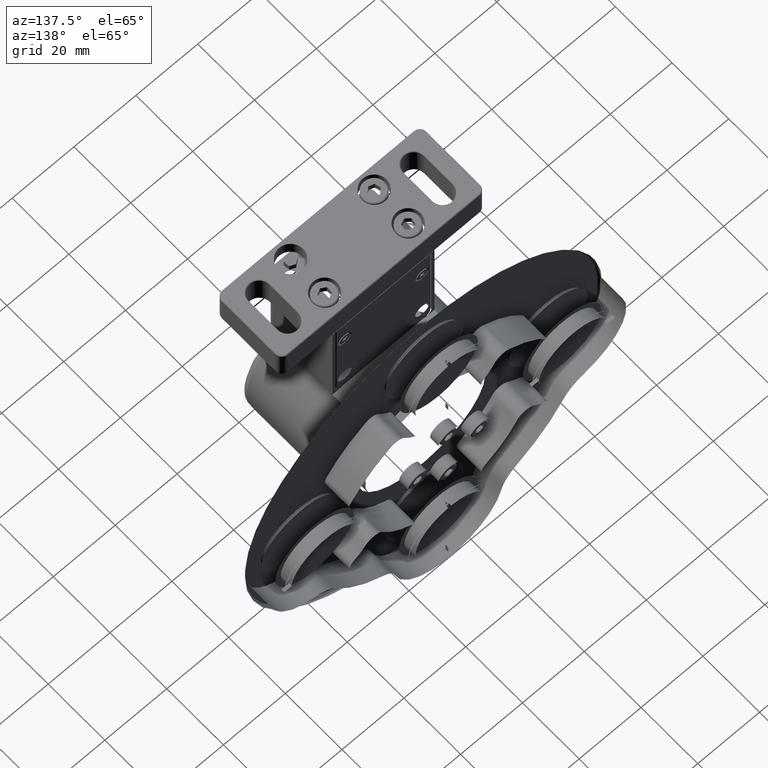
[diagram: clean part render]
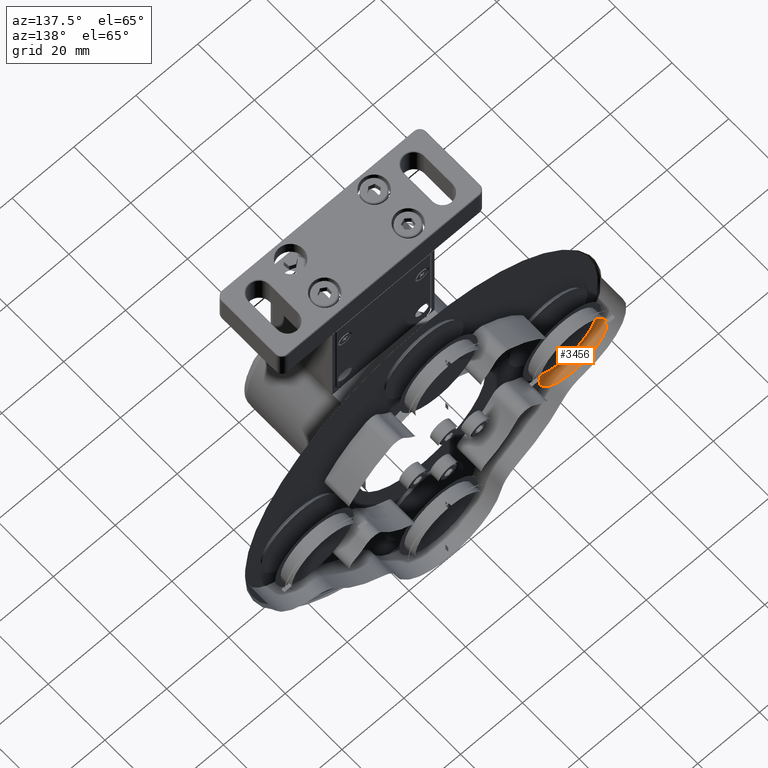
[diagram: same view with one face highlighted and labeled with its STEP entity id]
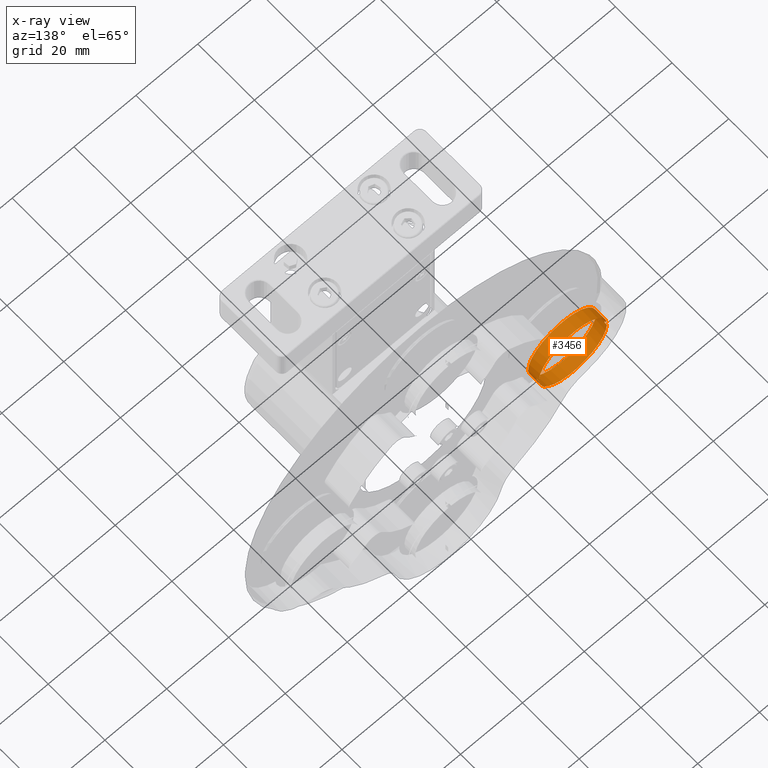
[diagram: x-ray of the same camera — body ghosted, the highlighted face saturated]
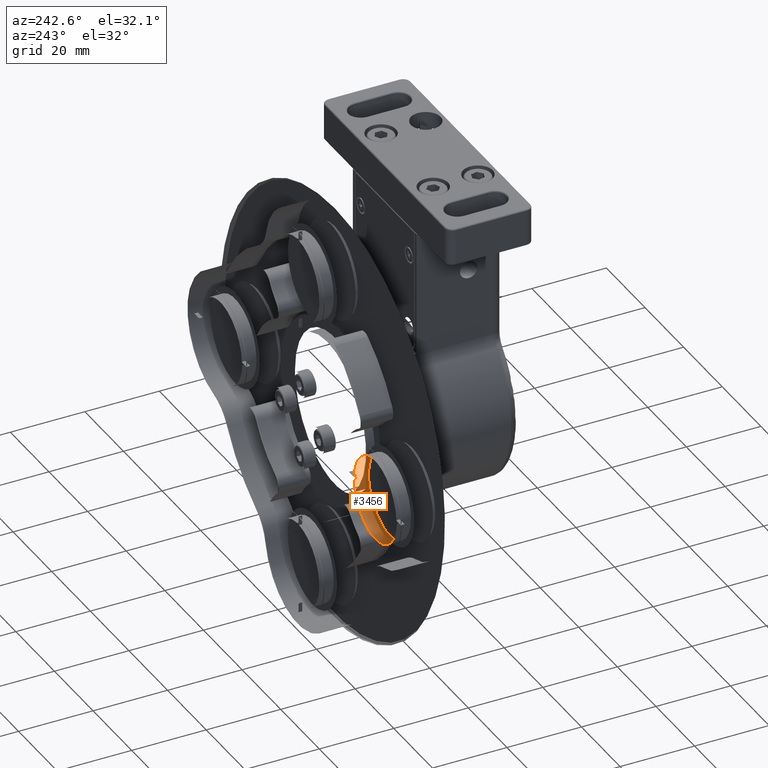
[diagram: same view with one face highlighted and labeled with its STEP entity id]
A machine part, auxiliary view. The second image highlights one B-rep face of the part: STEP entity #3456.
The next image is the same camera in x-ray: the body ghosted, the highlighted face saturated — about 0% of this face is hidden behind the body in this view.
A second angle (auxiliary view) of the same face is appended — the face is thin or edge-on in the first view.
In plain terms, the highlighted cylindrical surface (bore or boss wall) has radius 11 mm, axis along (0, -1, 0).
Its self-contained STEP definition (entity closure, byte-faithful):
#15 = ORIENTED_EDGE ( 'NONE', *, *, #11089, .T. ) ;
#172 = CIRCLE ( 'NONE', #12394, 10.99999999999999645 ) ;
#661 = DIRECTION ( 'NONE',  ( 1.000000000000000000, 0.000000000000000000, 0.000000000000000000 ) ) ;
#746 = DIRECTION ( 'NONE',  ( -3.488278094132890012E-29, 1.000000000000000000, -2.138707506833294133E-68 ) ) ;
#961 = DIRECTION ( 'NONE',  ( -2.274263914302540920E-28, 1.000000000000000000, 1.084202172485505420E-16 ) ) ;
#1329 = CIRCLE ( 'NONE', #15526, 10.99999999999999645 ) ;
#1534 = VERTEX_POINT ( 'NONE', #4554 ) ;
#1742 = CARTESIAN_POINT ( 'NONE',  ( -72.19565927728528720, 40.06348211055968278, 70.00000000060485661 ) ) ;
#1825 = DIRECTION ( 'NONE',  ( 3.488278094132890012E-29, -1.000000000000000000, 2.138707506833294133E-68 ) ) ;
#1991 = EDGE_LOOP ( 'NONE', ( #15 ) ) ;
#2071 = CARTESIAN_POINT ( 'NONE',  ( -72.19565927728528720, 40.86348211055967994, 70.00000000060485661 ) ) ;
#2375 = CARTESIAN_POINT ( 'NONE',  ( -61.20702878936645419, 41.06348211055967568, 69.50000000062806293 ) ) ;
#2417 = VERTEX_POINT ( 'NONE', #15859 ) ;
#2530 = LINE ( 'NONE', #9302, #4366 ) ;
#2614 = EDGE_CURVE ( 'NONE', #16206, #3596, #3426, .T. ) ;
#2917 = CARTESIAN_POINT ( 'NONE',  ( -83.18428976520233675, 41.06348211055967568, 69.50000000058196292 ) ) ;
#3311 = DIRECTION ( 'NONE',  ( 1.000000000000000000, 0.000000000000000000, 1.640102195468981798E-14 ) ) ;
#3387 = AXIS2_PLACEMENT_3D ( 'NONE', #8656, #15493, #14160 ) ;
#3426 = CIRCLE ( 'NONE', #15908, 10.99999999999999645 ) ;
#3456 = ADVANCED_FACE ( 'NONE', ( #4670, #14101 ), #8684, .T. ) ;
#3596 = VERTEX_POINT ( 'NONE', #7786 ) ;
#3664 = DIRECTION ( 'NONE',  ( -3.488278094132890012E-29, 1.000000000000000000, -2.138707506833294133E-68 ) ) ;
#3838 = CIRCLE ( 'NONE', #16332, 10.99999999999999645 ) ;
#4043 = ORIENTED_EDGE ( 'NONE', *, *, #17219, .F. ) ;
#4187 = VERTEX_POINT ( 'NONE', #16537 ) ;
#4366 = VECTOR ( 'NONE', #10633, 1000.000000000000000 ) ;
#4378 = VERTEX_POINT ( 'NONE', #16542 ) ;
#4554 = CARTESIAN_POINT ( 'NONE',  ( -61.20702878936847213, 40.06348211055968278, 70.50000000062806293 ) ) ;
#4670 = FACE_OUTER_BOUND ( 'NONE', #1991, .T. ) ;
#4762 = ORIENTED_EDGE ( 'NONE', *, *, #4846, .F. ) ;
#4846 = EDGE_CURVE ( 'NONE', #4378, #11502, #13147, .T. ) ;
#5258 = VECTOR ( 'NONE', #16420, 1000.000000000000000 ) ;
#5978 = CIRCLE ( 'NONE', #3387, 10.99999999999999645 ) ;
#6253 = AXIS2_PLACEMENT_3D ( 'NONE', #16575, #1825, #10016 ) ;
#6254 = DIRECTION ( 'NONE',  ( 3.488278094132890012E-29, -1.000000000000000000, 2.138707506833294133E-68 ) ) ;
#6641 = ORIENTED_EDGE ( 'NONE', *, *, #15260, .T. ) ;
#6732 = EDGE_LOOP ( 'NONE', ( #16568, #15421, #8839, #4762, #13197, #4043, #6641, #16739 ) ) ;
#7074 = DIRECTION ( 'NONE',  ( 1.000000000000000000, 0.000000000000000000, 0.000000000000000000 ) ) ;
#7605 = DIRECTION ( 'NONE',  ( -2.274263914302539126E-28, 1.000000000000000000, 1.084202172485504434E-16 ) ) ;
#7786 = CARTESIAN_POINT ( 'NONE',  ( -83.18428976520445417, 40.06348211055968278, 70.50000000058196292 ) ) ;
#8011 = CARTESIAN_POINT ( 'NONE',  ( -61.20702878936645419, 40.86348211055967994, 69.50000000062806293 ) ) ;
#8656 = CARTESIAN_POINT ( 'NONE',  ( -72.19565927728528720, 40.86348211055967994, 70.00000000060485661 ) ) ;
#8684 = CYLINDRICAL_SURFACE ( 'NONE', #6253, 10.99999999999999645 ) ;
#8839 = ORIENTED_EDGE ( 'NONE', *, *, #17577, .T. ) ;
#9302 = CARTESIAN_POINT ( 'NONE',  ( -61.20702878936853608, 41.06348211055968278, 70.50000000062806293 ) ) ;
#9542 = EDGE_CURVE ( 'NONE', #16875, #16206, #9595, .T. ) ;
#9595 = LINE ( 'NONE', #2917, #5258 ) ;
#10016 = DIRECTION ( 'NONE',  ( 1.000000000000000000, 0.000000000000000000, 0.000000000000000000 ) ) ;
#10251 = VERTEX_POINT ( 'NONE', #15124 ) ;
#10274 = LINE ( 'NONE', #14360, #15886 ) ;
#10633 = DIRECTION ( 'NONE',  ( 2.274263914302539126E-28, -1.000000000000000000, -1.084202172485504434E-16 ) ) ;
#11030 = EDGE_CURVE ( 'NONE', #1534, #4378, #1329, .T. ) ;
#11089 = EDGE_CURVE ( 'NONE', #4187, #4187, #172, .T. ) ;
#11171 = DIRECTION ( 'NONE',  ( 1.000000000000000000, 0.000000000000000000, 0.000000000000000000 ) ) ;
#11502 = VERTEX_POINT ( 'NONE', #8011 ) ;
#11587 = CARTESIAN_POINT ( 'NONE',  ( -72.19565927728528720, 40.06348211055968278, 70.00000000060485661 ) ) ;
#11667 = DIRECTION ( 'NONE',  ( -3.488278094132890012E-29, 1.000000000000000000, -2.138707506833294133E-68 ) ) ;
#11761 = CARTESIAN_POINT ( 'NONE',  ( -83.18428976520225149, 40.06348211055968278, 69.50000000058196292 ) ) ;
#12394 = AXIS2_PLACEMENT_3D ( 'NONE', #12601, #746, #7074 ) ;
#12601 = CARTESIAN_POINT ( 'NONE',  ( -72.19565927728528720, 37.06348211055968278, 70.00000000060485661 ) ) ;
#12603 = CARTESIAN_POINT ( 'NONE',  ( -83.18428976520225149, 40.86348211055967994, 69.50000000058189187 ) ) ;
#13147 = LINE ( 'NONE', #2375, #16525 ) ;
#13197 = ORIENTED_EDGE ( 'NONE', *, *, #11030, .F. ) ;
#14101 = FACE_OUTER_BOUND ( 'NONE', #6732, .T. ) ;
#14160 = DIRECTION ( 'NONE',  ( 1.000000000000000000, 0.000000000000000000, 0.000000000000000000 ) ) ;
#14360 = CARTESIAN_POINT ( 'NONE',  ( -83.18428976520459628, 41.06348211055968278, 70.50000000058196292 ) ) ;
#15124 = CARTESIAN_POINT ( 'NONE',  ( -61.20702878936845792, 40.86348211055967994, 70.50000000062783556 ) ) ;
#15260 = EDGE_CURVE ( 'NONE', #10251, #2417, #5978, .T. ) ;
#15421 = ORIENTED_EDGE ( 'NONE', *, *, #9542, .F. ) ;
#15493 = DIRECTION ( 'NONE',  ( 3.488278094132890012E-29, -1.000000000000000000, 2.138707506833294133E-68 ) ) ;
#15526 = AXIS2_PLACEMENT_3D ( 'NONE', #1742, #3664, #11171 ) ;
#15855 = EDGE_CURVE ( 'NONE', #3596, #2417, #10274, .T. ) ;
#15859 = CARTESIAN_POINT ( 'NONE',  ( -83.18428976520458207, 40.86348211055969415, 70.50000000058196292 ) ) ;
#15886 = VECTOR ( 'NONE', #7605, 1000.000000000000000 ) ;
#15908 = AXIS2_PLACEMENT_3D ( 'NONE', #11587, #11667, #3311 ) ;
#16206 = VERTEX_POINT ( 'NONE', #11761 ) ;
#16332 = AXIS2_PLACEMENT_3D ( 'NONE', #2071, #6254, #661 ) ;
#16420 = DIRECTION ( 'NONE',  ( 2.274263914302540920E-28, -1.000000000000000000, -1.084202172485505420E-16 ) ) ;
#16525 = VECTOR ( 'NONE', #961, 1000.000000000000000 ) ;
#16537 = CARTESIAN_POINT ( 'NONE',  ( -61.19565927728529431, 37.06348211055968278, 70.00000000060485661 ) ) ;
#16542 = CARTESIAN_POINT ( 'NONE',  ( -61.20702878936636182, 40.06348211055968278, 69.50000000062806293 ) ) ;
#16568 = ORIENTED_EDGE ( 'NONE', *, *, #2614, .F. ) ;
#16575 = CARTESIAN_POINT ( 'NONE',  ( -72.19565927728528720, 41.06348211055968278, 70.00000000060485661 ) ) ;
#16739 = ORIENTED_EDGE ( 'NONE', *, *, #15855, .F. ) ;
#16875 = VERTEX_POINT ( 'NONE', #12603 ) ;
#17219 = EDGE_CURVE ( 'NONE', #10251, #1534, #2530, .T. ) ;
#17577 = EDGE_CURVE ( 'NONE', #16875, #11502, #3838, .T. ) ;